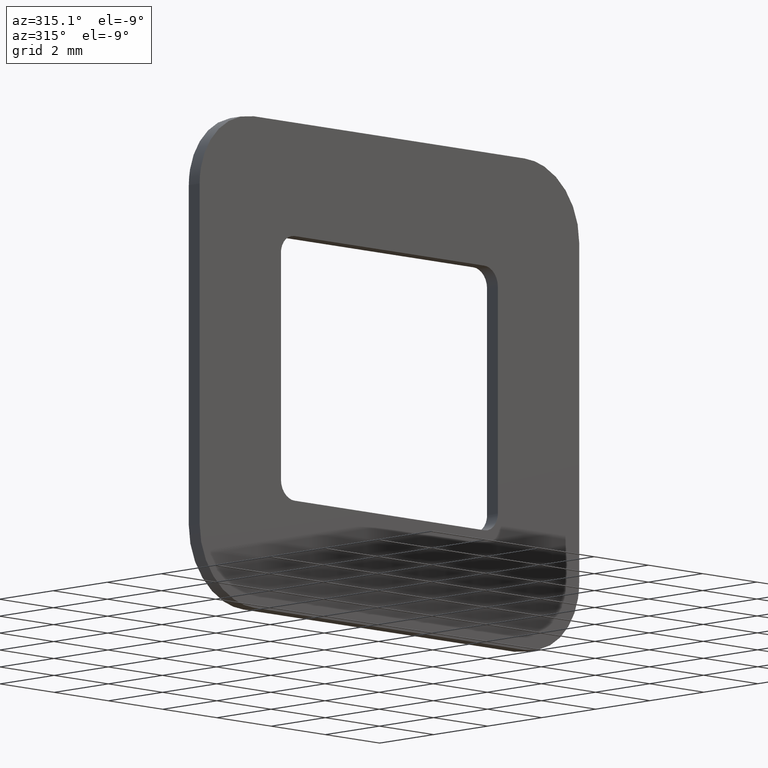
[diagram: clean part render]
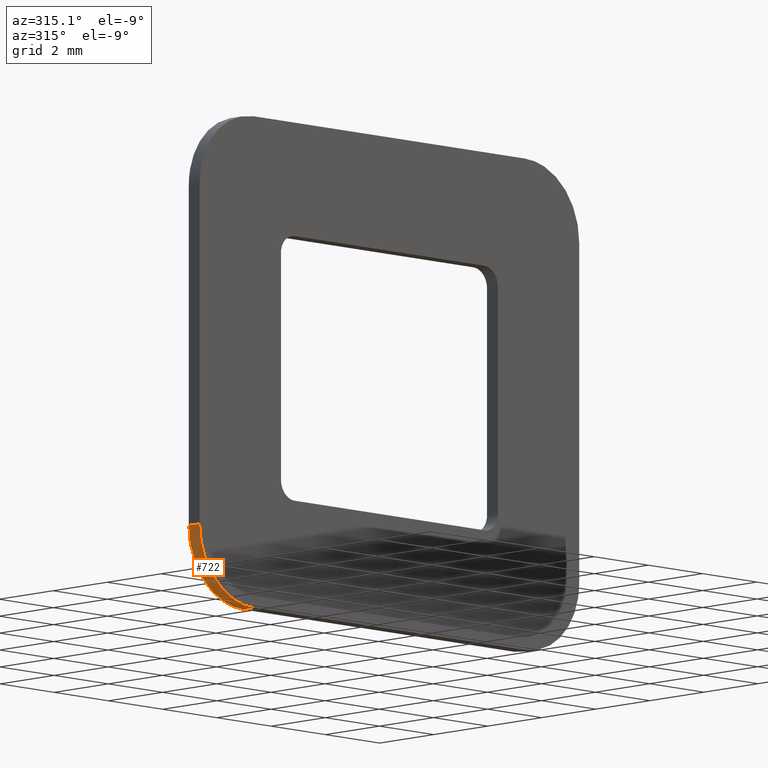
[diagram: same view with one face highlighted and labeled with its STEP entity id]
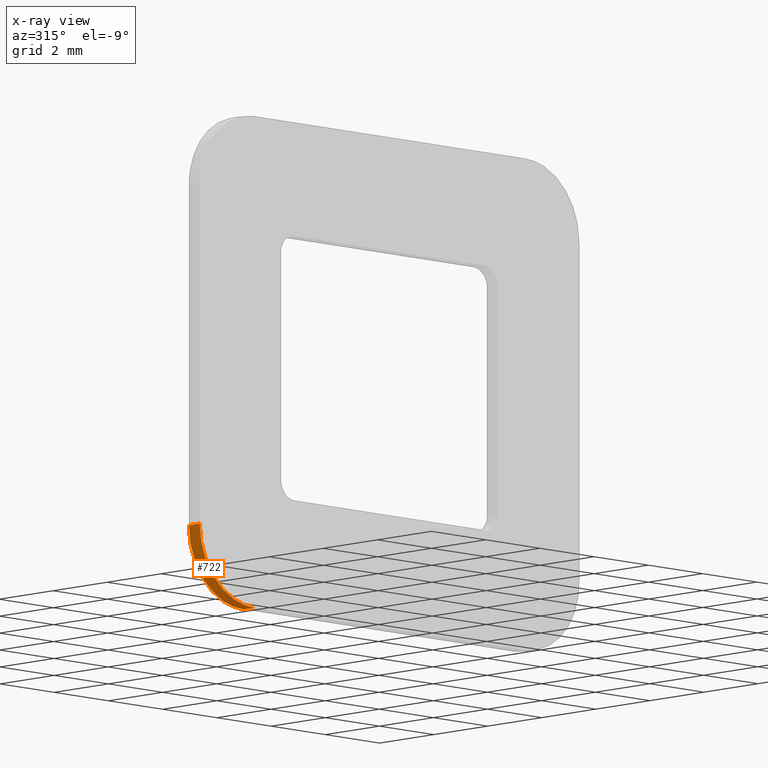
[diagram: x-ray of the same camera — body ghosted, the highlighted face saturated]
A machine part, auxiliary view. The second image highlights one B-rep face of the part: STEP entity #722.
The next image is the same camera in x-ray: the body ghosted, the highlighted face saturated — about 0% of this face is hidden behind the body in this view.
In plain terms, the highlighted face is a freeform B-spline surface patch.
Its self-contained STEP definition (entity closure, byte-faithful):
#398=CARTESIAN_POINT('',(-7.0,-0.400002000000011,-4.500000000000000));
#399=VERTEX_POINT('',#398);
#405=CARTESIAN_POINT('',(-4.999999965093420,-0.400002000000011,-6.500000000000000));
#406=VERTEX_POINT('',#405);
#407=CARTESIAN_POINT('',(-7.0,-0.400002000000011,-4.500000000000000));
#408=CARTESIAN_POINT('',(-6.999999999999999,-0.400002000000010,-5.328427134970091));
#409=CARTESIAN_POINT('',(-6.414213550031755,-0.400002000000011,-5.914213574714434));
#410=CARTESIAN_POINT('',(-5.828427100063511,-0.400002000000010,-6.500000014458778));
#411=CARTESIAN_POINT('',(-4.999999965093421,-0.400002000000011,-6.499999999999999));
#419=(BOUNDED_CURVE()B_SPLINE_CURVE(2,(#407,#408,#409,#410,#411),.UNSPECIFIED.,.F.,.U.)B_SPLINE_CURVE_WITH_KNOTS((3,2,3),(0.0,0.500000000000000,1.0),.UNSPECIFIED.)CURVE()GEOMETRIC_REPRESENTATION_ITEM()RATIONAL_B_SPLINE_CURVE((1.0,0.923879530841516,1.0,0.923879530841516,1.0))REPRESENTATION_ITEM(''));
#420=EDGE_CURVE('',#399,#406,#419,.T.);
#554=CARTESIAN_POINT('',(-4.999999965093420,0.0,-6.500000000000000));
#555=VERTEX_POINT('',#554);
#561=CARTESIAN_POINT('',(-7.0,0.0,-4.500000000000000));
#562=VERTEX_POINT('',#561);
#563=CARTESIAN_POINT('',(-7.0,0.0,-4.500000000000000));
#564=CARTESIAN_POINT('',(-6.999999999999999,0.0,-5.328427134970091));
#565=CARTESIAN_POINT('',(-6.414213550031755,0.0,-5.914213574714434));
#566=CARTESIAN_POINT('',(-5.828427100063511,0.0,-6.500000014458778));
#567=CARTESIAN_POINT('',(-4.999999965093421,0.0,-6.499999999999999));
#575=(BOUNDED_CURVE()B_SPLINE_CURVE(2,(#563,#564,#565,#566,#567),.UNSPECIFIED.,.F.,.U.)B_SPLINE_CURVE_WITH_KNOTS((3,2,3),(0.0,0.500000000000000,1.0),.UNSPECIFIED.)CURVE()GEOMETRIC_REPRESENTATION_ITEM()RATIONAL_B_SPLINE_CURVE((1.0,0.923879530841516,1.0,0.923879530841516,1.0))REPRESENTATION_ITEM(''));
#576=EDGE_CURVE('',#562,#555,#575,.T.);
#688=CARTESIAN_POINT('',(-4.999999965093420,0.0,-6.500000000000000));
#689=CARTESIAN_POINT('',(-4.999999965093420,-0.400002000000011,-6.500000000000000));
#690=QUASI_UNIFORM_CURVE('',1,(#688,#689),.UNSPECIFIED.,.F.,.U.);
#691=EDGE_CURVE('',#555,#406,#690,.T.);
#698=CARTESIAN_POINT('',(-4.912761225269327,0.010000050000000,-6.498096443163715));
#699=CARTESIAN_POINT('',(-4.912761225269327,-0.410252051250011,-6.498096443163715));
#700=CARTESIAN_POINT('',(-7.152120528918072,0.010000050000000,-6.595868981871969));
#701=CARTESIAN_POINT('',(-7.152120528918072,-0.410252051250011,-6.595868981871969));
#702=CARTESIAN_POINT('',(-6.995085826463835,0.010000050000000,-4.359883815912956));
#703=CARTESIAN_POINT('',(-6.995085826463835,-0.410252051250011,-4.359883815912956));
#711=(BOUNDED_SURFACE()B_SPLINE_SURFACE(1,2,((#698,#700,#702),(#699,#701,#703)),.UNSPECIFIED.,.F.,.F.,.U.)B_SPLINE_SURFACE_WITH_KNOTS((2,2),(3,3),(0.0,0.420252101250011),(0.0,3.583485079683969),.UNSPECIFIED.)GEOMETRIC_REPRESENTATION_ITEM()RATIONAL_B_SPLINE_SURFACE(((1.0,0.664513898535122,0.996233561259061),(1.0,0.664513898535122,0.996233561259061)))REPRESENTATION_ITEM('')SURFACE());
#712=ORIENTED_EDGE('',*,*,#420,.F.);
#713=CARTESIAN_POINT('',(-7.0,0.0,-4.500000000000000));
#714=CARTESIAN_POINT('',(-7.0,-0.400002000000011,-4.500000000000000));
#715=QUASI_UNIFORM_CURVE('',1,(#713,#714),.UNSPECIFIED.,.F.,.U.);
#716=EDGE_CURVE('',#562,#399,#715,.T.);
#717=ORIENTED_EDGE('',*,*,#716,.F.);
#718=ORIENTED_EDGE('',*,*,#576,.T.);
#719=ORIENTED_EDGE('',*,*,#691,.T.);
#720=EDGE_LOOP('',(#712,#717,#718,#719));
#721=FACE_OUTER_BOUND('',#720,.T.);
#722=ADVANCED_FACE('',(#721),#711,.T.);